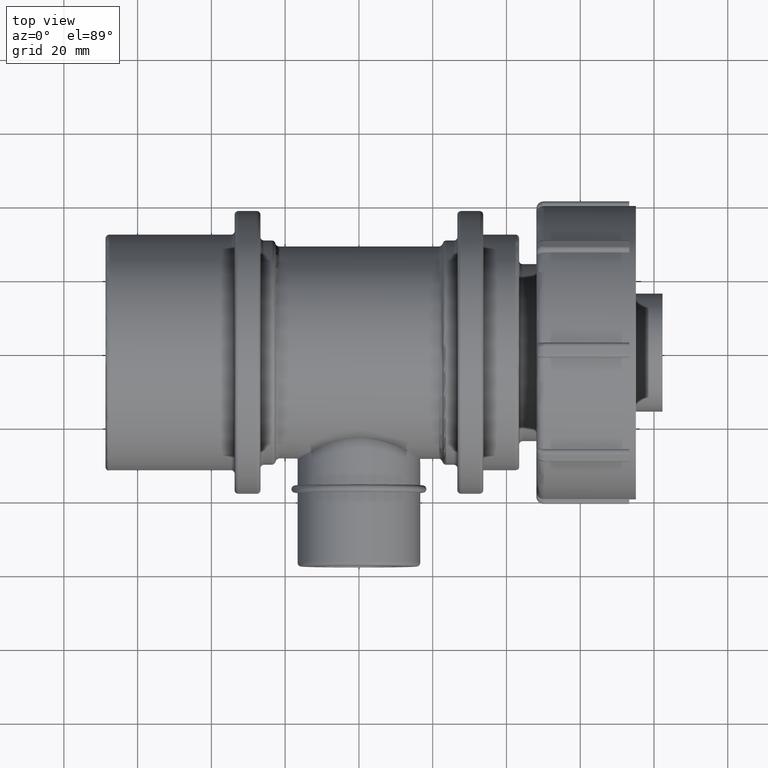
[diagram: clean part render]
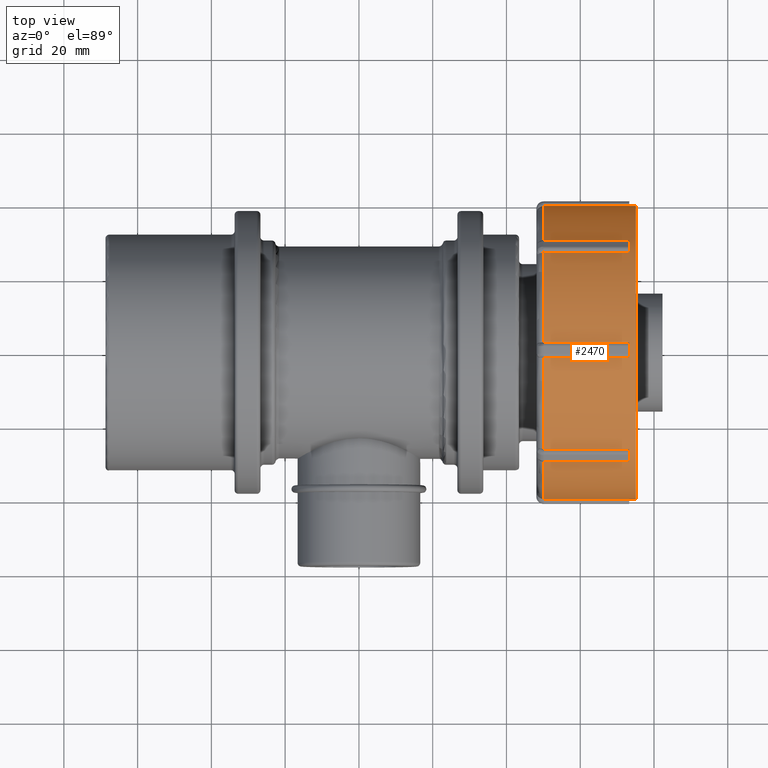
[diagram: same view with one face highlighted and labeled with its STEP entity id]
A machine part, top view. The second image highlights one B-rep face of the part: STEP entity #2470.
In plain terms, the highlighted cylindrical surface (bore or boss wall) has radius 39.77 mm, axis along (1, 0, 0).
Its self-contained STEP definition (entity closure, byte-faithful):
#21=LINE('',#3823,#125);
#53=LINE('',#4011,#157);
#62=LINE('',#4133,#166);
#71=LINE('',#4257,#175);
#80=LINE('',#4381,#184);
#89=LINE('',#4505,#193);
#98=LINE('',#4627,#202);
#104=LINE('',#4704,#208);
#105=LINE('',#4713,#209);
#106=LINE('',#4722,#210);
#107=LINE('',#4731,#211);
#108=LINE('',#4740,#212);
#109=LINE('',#4749,#213);
#110=LINE('',#4764,#214);
#111=LINE('',#4771,#215);
#112=LINE('',#4775,#216);
#125=VECTOR('',#2986,23.2);
#157=VECTOR('',#3082,23.2);
#166=VECTOR('',#3135,23.2);
#175=VECTOR('',#3188,23.2);
#184=VECTOR('',#3241,23.2);
#193=VECTOR('',#3294,23.2);
#202=VECTOR('',#3347,23.2);
#208=VECTOR('',#3381,23.2);
#209=VECTOR('',#3384,23.2);
#210=VECTOR('',#3387,23.2);
#211=VECTOR('',#3390,23.2);
#212=VECTOR('',#3393,23.2);
#213=VECTOR('',#3396,23.2);
#214=VECTOR('',#3411,23.2);
#215=VECTOR('',#3418,23.2);
#216=VECTOR('',#3421,23.2);
#344=CIRCLE('',#2590,39.77);
#368=CIRCLE('',#2622,39.77);
#383=CIRCLE('',#2644,39.77);
#398=CIRCLE('',#2666,39.77);
#413=CIRCLE('',#2688,39.77);
#428=CIRCLE('',#2710,39.77);
#443=CIRCLE('',#2732,39.77);
#450=CIRCLE('',#2757,39.77);
#451=CIRCLE('',#2758,39.77);
#452=CIRCLE('',#2759,39.77);
#453=CIRCLE('',#2760,39.77);
#454=CIRCLE('',#2761,39.77);
#455=CIRCLE('',#2762,39.77);
#456=CIRCLE('',#2763,39.77);
#457=CIRCLE('',#2764,39.77);
#458=CIRCLE('',#2765,39.77);
#459=CIRCLE('',#2766,39.77);
#550=FACE_BOUND('',#898,.T.);
#698=FACE_OUTER_BOUND('',#897,.T.);
#897=EDGE_LOOP('',(#2083));
#898=EDGE_LOOP('',(#2084,#2085,#2086,#2087,#2088,#2089,#2090,#2091,#2092,
#2093,#2094,#2095,#2096,#2097,#2098,#2099,#2100,#2101,#2102,#2103,#2104,
#2105,#2106,#2107,#2108,#2109,#2110,#2111,#2112,#2113,#2114,#2115));
#1063=VERTEX_POINT('',#3820);
#1064=VERTEX_POINT('',#3822);
#1067=VERTEX_POINT('',#3835);
#1111=VERTEX_POINT('',#4008);
#1112=VERTEX_POINT('',#4010);
#1115=VERTEX_POINT('',#4023);
#1128=VERTEX_POINT('',#4130);
#1129=VERTEX_POINT('',#4132);
#1132=VERTEX_POINT('',#4145);
#1145=VERTEX_POINT('',#4254);
#1146=VERTEX_POINT('',#4256);
#1149=VERTEX_POINT('',#4269);
#1162=VERTEX_POINT('',#4378);
#1163=VERTEX_POINT('',#4380);
#1166=VERTEX_POINT('',#4393);
#1179=VERTEX_POINT('',#4502);
#1180=VERTEX_POINT('',#4504);
#1183=VERTEX_POINT('',#4517);
#1196=VERTEX_POINT('',#4624);
#1197=VERTEX_POINT('',#4626);
#1200=VERTEX_POINT('',#4639);
#1206=VERTEX_POINT('',#4697);
#1207=VERTEX_POINT('',#4706);
#1208=VERTEX_POINT('',#4715);
#1209=VERTEX_POINT('',#4724);
#1210=VERTEX_POINT('',#4733);
#1211=VERTEX_POINT('',#4742);
#1212=VERTEX_POINT('',#4757);
#1213=VERTEX_POINT('',#4766);
#1214=VERTEX_POINT('',#4768);
#1215=VERTEX_POINT('',#4770);
#1216=VERTEX_POINT('',#4772);
#1217=VERTEX_POINT('',#4774);
#1299=EDGE_CURVE('',#1064,#1063,#21,.T.);
#1304=EDGE_CURVE('',#1063,#1067,#344,.T.);
#1360=EDGE_CURVE('',#1112,#1111,#53,.T.);
#1365=EDGE_CURVE('',#1111,#1115,#368,.T.);
#1389=EDGE_CURVE('',#1129,#1128,#62,.T.);
#1394=EDGE_CURVE('',#1128,#1132,#383,.T.);
#1418=EDGE_CURVE('',#1146,#1145,#71,.T.);
#1423=EDGE_CURVE('',#1145,#1149,#398,.T.);
#1447=EDGE_CURVE('',#1163,#1162,#80,.T.);
#1452=EDGE_CURVE('',#1162,#1166,#413,.T.);
#1476=EDGE_CURVE('',#1180,#1179,#89,.T.);
#1481=EDGE_CURVE('',#1179,#1183,#428,.T.);
#1505=EDGE_CURVE('',#1197,#1196,#98,.T.);
#1510=EDGE_CURVE('',#1196,#1200,#443,.T.);
#1523=EDGE_CURVE('',#1067,#1206,#104,.T.);
#1525=EDGE_CURVE('',#1115,#1207,#105,.T.);
#1527=EDGE_CURVE('',#1132,#1208,#106,.T.);
#1529=EDGE_CURVE('',#1149,#1209,#107,.T.);
#1531=EDGE_CURVE('',#1166,#1210,#108,.T.);
#1533=EDGE_CURVE('',#1183,#1211,#109,.T.);
#1535=EDGE_CURVE('',#1200,#1212,#110,.T.);
#1536=EDGE_CURVE('',#1213,#1213,#450,.T.);
#1537=EDGE_CURVE('',#1214,#1206,#451,.T.);
#1538=EDGE_CURVE('',#1214,#1215,#111,.T.);
#1539=EDGE_CURVE('',#1215,#1216,#452,.T.);
#1540=EDGE_CURVE('',#1216,#1217,#112,.T.);
#1541=EDGE_CURVE('',#1197,#1217,#453,.T.);
#1542=EDGE_CURVE('',#1180,#1212,#454,.T.);
#1543=EDGE_CURVE('',#1163,#1211,#455,.T.);
#1544=EDGE_CURVE('',#1146,#1210,#456,.T.);
#1545=EDGE_CURVE('',#1129,#1209,#457,.T.);
#1546=EDGE_CURVE('',#1112,#1208,#458,.T.);
#1547=EDGE_CURVE('',#1064,#1207,#459,.T.);
#2083=ORIENTED_EDGE('',*,*,#1536,.F.);
#2084=ORIENTED_EDGE('',*,*,#1299,.T.);
#2085=ORIENTED_EDGE('',*,*,#1304,.T.);
#2086=ORIENTED_EDGE('',*,*,#1523,.T.);
#2087=ORIENTED_EDGE('',*,*,#1537,.F.);
#2088=ORIENTED_EDGE('',*,*,#1538,.T.);
#2089=ORIENTED_EDGE('',*,*,#1539,.T.);
#2090=ORIENTED_EDGE('',*,*,#1540,.T.);
#2091=ORIENTED_EDGE('',*,*,#1541,.F.);
#2092=ORIENTED_EDGE('',*,*,#1505,.T.);
#2093=ORIENTED_EDGE('',*,*,#1510,.T.);
#2094=ORIENTED_EDGE('',*,*,#1535,.T.);
#2095=ORIENTED_EDGE('',*,*,#1542,.F.);
#2096=ORIENTED_EDGE('',*,*,#1476,.T.);
#2097=ORIENTED_EDGE('',*,*,#1481,.T.);
#2098=ORIENTED_EDGE('',*,*,#1533,.T.);
#2099=ORIENTED_EDGE('',*,*,#1543,.F.);
#2100=ORIENTED_EDGE('',*,*,#1447,.T.);
#2101=ORIENTED_EDGE('',*,*,#1452,.T.);
#2102=ORIENTED_EDGE('',*,*,#1531,.T.);
#2103=ORIENTED_EDGE('',*,*,#1544,.F.);
#2104=ORIENTED_EDGE('',*,*,#1418,.T.);
#2105=ORIENTED_EDGE('',*,*,#1423,.T.);
#2106=ORIENTED_EDGE('',*,*,#1529,.T.);
#2107=ORIENTED_EDGE('',*,*,#1545,.F.);
#2108=ORIENTED_EDGE('',*,*,#1389,.T.);
#2109=ORIENTED_EDGE('',*,*,#1394,.T.);
#2110=ORIENTED_EDGE('',*,*,#1527,.T.);
#2111=ORIENTED_EDGE('',*,*,#1546,.F.);
#2112=ORIENTED_EDGE('',*,*,#1360,.T.);
#2113=ORIENTED_EDGE('',*,*,#1365,.T.);
#2114=ORIENTED_EDGE('',*,*,#1525,.T.);
#2115=ORIENTED_EDGE('',*,*,#1547,.F.);
#2331=CYLINDRICAL_SURFACE('',#2756,39.77);
#2470=ADVANCED_FACE('',(#698,#550),#2331,.T.);
#2590=AXIS2_PLACEMENT_3D('',#3837,#2993,#2994);
#2622=AXIS2_PLACEMENT_3D('',#4025,#3089,#3090);
#2644=AXIS2_PLACEMENT_3D('',#4147,#3142,#3143);
#2666=AXIS2_PLACEMENT_3D('',#4271,#3195,#3196);
#2688=AXIS2_PLACEMENT_3D('',#4395,#3248,#3249);
#2710=AXIS2_PLACEMENT_3D('',#4519,#3301,#3302);
#2732=AXIS2_PLACEMENT_3D('',#4641,#3354,#3355);
#2756=AXIS2_PLACEMENT_3D('',#4765,#3412,#3413);
#2757=AXIS2_PLACEMENT_3D('',#4767,#3414,#3415);
#2758=AXIS2_PLACEMENT_3D('',#4769,#3416,#3417);
#2759=AXIS2_PLACEMENT_3D('',#4773,#3419,#3420);
#2760=AXIS2_PLACEMENT_3D('',#4776,#3422,#3423);
#2761=AXIS2_PLACEMENT_3D('',#4777,#3424,#3425);
#2762=AXIS2_PLACEMENT_3D('',#4778,#3426,#3427);
#2763=AXIS2_PLACEMENT_3D('',#4779,#3428,#3429);
#2764=AXIS2_PLACEMENT_3D('',#4780,#3430,#3431);
#2765=AXIS2_PLACEMENT_3D('',#4781,#3432,#3433);
#2766=AXIS2_PLACEMENT_3D('',#4782,#3434,#3435);
#2986=DIRECTION('',(1.,0.,0.));
#2993=DIRECTION('center_axis',(1.,0.,0.));
#2994=DIRECTION('ref_axis',(0.,1.,0.));
#3082=DIRECTION('',(1.,0.,0.));
#3089=DIRECTION('center_axis',(1.,0.,0.));
#3090=DIRECTION('ref_axis',(0.,1.,0.));
#3135=DIRECTION('',(1.,0.,0.));
#3142=DIRECTION('center_axis',(1.,0.,0.));
#3143=DIRECTION('ref_axis',(0.,1.,0.));
#3188=DIRECTION('',(1.,0.,0.));
#3195=DIRECTION('center_axis',(1.,0.,0.));
#3196=DIRECTION('ref_axis',(0.,1.,0.));
#3241=DIRECTION('',(1.,0.,0.));
#3248=DIRECTION('center_axis',(1.,0.,0.));
#3249=DIRECTION('ref_axis',(0.,1.,0.));
#3294=DIRECTION('',(1.,0.,0.));
#3301=DIRECTION('center_axis',(1.,0.,0.));
#3302=DIRECTION('ref_axis',(0.,1.,0.));
#3347=DIRECTION('',(1.,0.,0.));
#3354=DIRECTION('center_axis',(1.,0.,0.));
#3355=DIRECTION('ref_axis',(0.,1.,0.));
#3381=DIRECTION('',(-1.,0.,0.));
#3384=DIRECTION('',(-1.,0.,0.));
#3387=DIRECTION('',(-1.,0.,0.));
#3390=DIRECTION('',(-1.,0.,0.));
#3393=DIRECTION('',(-1.,0.,0.));
#3396=DIRECTION('',(-1.,0.,0.));
#3411=DIRECTION('',(-1.,0.,0.));
#3412=DIRECTION('center_axis',(1.,0.,0.));
#3413=DIRECTION('ref_axis',(0.,1.,0.));
#3414=DIRECTION('center_axis',(1.,0.,0.));
#3415=DIRECTION('ref_axis',(0.,0.,-1.));
#3416=DIRECTION('center_axis',(-1.,0.,0.));
#3417=DIRECTION('ref_axis',(0.,-1.,1.83697019872103E-16));
#3418=DIRECTION('',(1.,0.,0.));
#3419=DIRECTION('center_axis',(1.,0.,0.));
#3420=DIRECTION('ref_axis',(0.,1.,0.));
#3421=DIRECTION('',(-1.,0.,0.));
#3422=DIRECTION('center_axis',(-1.,0.,0.));
#3423=DIRECTION('ref_axis',(0.,-1.,1.83697019872103E-16));
#3424=DIRECTION('center_axis',(-1.,0.,0.));
#3425=DIRECTION('ref_axis',(0.,-1.,1.83697019872103E-16));
#3426=DIRECTION('center_axis',(-1.,0.,0.));
#3427=DIRECTION('ref_axis',(0.,-1.,1.83697019872103E-16));
#3428=DIRECTION('center_axis',(-1.,0.,0.));
#3429=DIRECTION('ref_axis',(0.,-1.,1.83697019872103E-16));
#3430=DIRECTION('center_axis',(-1.,0.,0.));
#3431=DIRECTION('ref_axis',(0.,-1.,1.83697019872103E-16));
#3432=DIRECTION('center_axis',(-1.,0.,0.));
#3433=DIRECTION('ref_axis',(0.,-1.,1.83697019872103E-16));
#3434=DIRECTION('center_axis',(-1.,0.,0.));
#3435=DIRECTION('ref_axis',(0.,-1.,1.83697019872103E-16));
#3820=CARTESIAN_POINT('',(73.3,26.6346829134193,-29.5338207162841));
#3822=CARTESIAN_POINT('',(50.1,26.6346829134193,-29.5338207162841));
#3823=CARTESIAN_POINT('',(61.6,26.6346829134193,-29.5338207162841));
#3835=CARTESIAN_POINT('',(73.3,29.5338207162841,-26.6346829134193));
#3837=CARTESIAN_POINT('Origin',(73.3,0.,0.));
#4008=CARTESIAN_POINT('',(73.3,-2.05000000000001,-39.7171298056645));
#4010=CARTESIAN_POINT('',(50.1,-2.05000000000001,-39.7171298056645));
#4011=CARTESIAN_POINT('',(61.6,-2.05000000000001,-39.7171298056645));
#4023=CARTESIAN_POINT('',(73.3,2.04999999999999,-39.7171298056645));
#4025=CARTESIAN_POINT('Origin',(73.3,0.,0.));
#4130=CARTESIAN_POINT('',(73.3,-29.5338207162841,-26.6346829134193));
#4132=CARTESIAN_POINT('',(50.1,-29.5338207162841,-26.6346829134193));
#4133=CARTESIAN_POINT('',(61.6,-29.5338207162841,-26.6346829134193));
#4145=CARTESIAN_POINT('',(73.3,-26.6346829134193,-29.5338207162841));
#4147=CARTESIAN_POINT('Origin',(73.3,0.,0.));
#4254=CARTESIAN_POINT('',(73.3,-39.7171298056645,2.05000000000001));
#4256=CARTESIAN_POINT('',(50.1,-39.7171298056645,2.05000000000001));
#4257=CARTESIAN_POINT('',(61.6,-39.7171298056645,2.05000000000001));
#4269=CARTESIAN_POINT('',(73.3,-39.7171298056645,-2.04999999999999));
#4271=CARTESIAN_POINT('Origin',(73.3,0.,0.));
#4378=CARTESIAN_POINT('',(73.3,-26.6346829134193,29.5338207162841));
#4380=CARTESIAN_POINT('',(50.1,-26.6346829134193,29.5338207162841));
#4381=CARTESIAN_POINT('',(61.6,-26.6346829134193,29.5338207162841));
#4393=CARTESIAN_POINT('',(73.3,-29.5338207162841,26.6346829134193));
#4395=CARTESIAN_POINT('Origin',(73.3,0.,0.));
#4502=CARTESIAN_POINT('',(73.3,2.05,39.7171298056645));
#4504=CARTESIAN_POINT('',(50.1,2.05,39.7171298056645));
#4505=CARTESIAN_POINT('',(61.6,2.05,39.7171298056645));
#4517=CARTESIAN_POINT('',(73.3,-2.05,39.7171298056645));
#4519=CARTESIAN_POINT('Origin',(73.3,0.,0.));
#4624=CARTESIAN_POINT('',(73.3,29.5338207162841,26.6346829134193));
#4626=CARTESIAN_POINT('',(50.1,29.5338207162841,26.6346829134193));
#4627=CARTESIAN_POINT('',(61.6,29.5338207162841,26.6346829134193));
#4639=CARTESIAN_POINT('',(73.3,26.6346829134193,29.5338207162841));
#4641=CARTESIAN_POINT('Origin',(73.3,0.,0.));
#4697=CARTESIAN_POINT('',(50.1,29.5338207162841,-26.6346829134193));
#4704=CARTESIAN_POINT('',(61.6,29.5338207162841,-26.6346829134193));
#4706=CARTESIAN_POINT('',(50.1,2.04999999999999,-39.7171298056645));
#4713=CARTESIAN_POINT('',(61.6,2.04999999999999,-39.7171298056645));
#4715=CARTESIAN_POINT('',(50.1,-26.6346829134193,-29.5338207162841));
#4722=CARTESIAN_POINT('',(61.6,-26.6346829134193,-29.5338207162841));
#4724=CARTESIAN_POINT('',(50.1,-39.7171298056645,-2.04999999999999));
#4731=CARTESIAN_POINT('',(61.6,-39.7171298056645,-2.04999999999999));
#4733=CARTESIAN_POINT('',(50.1,-29.5338207162841,26.6346829134193));
#4740=CARTESIAN_POINT('',(61.6,-29.5338207162841,26.6346829134193));
#4742=CARTESIAN_POINT('',(50.1,-2.05,39.7171298056645));
#4749=CARTESIAN_POINT('',(61.6,-2.05,39.7171298056645));
#4757=CARTESIAN_POINT('',(50.1,26.6346829134193,29.5338207162841));
#4764=CARTESIAN_POINT('',(61.6,26.6346829134193,29.5338207162841));
#4765=CARTESIAN_POINT('Origin',(61.6,0.,0.));
#4766=CARTESIAN_POINT('',(75.1,39.77,0.));
#4767=CARTESIAN_POINT('Origin',(75.1,0.,0.));
#4768=CARTESIAN_POINT('',(50.1,39.7171298056645,-2.05));
#4769=CARTESIAN_POINT('Origin',(50.1,0.,0.));
#4770=CARTESIAN_POINT('',(73.3,39.7171298056645,-2.05));
#4771=CARTESIAN_POINT('',(61.6,39.7171298056645,-2.05));
#4772=CARTESIAN_POINT('',(73.3,39.7171298056645,2.05));
#4773=CARTESIAN_POINT('Origin',(73.3,0.,0.));
#4774=CARTESIAN_POINT('',(50.1,39.7171298056645,2.05));
#4775=CARTESIAN_POINT('',(61.6,39.7171298056645,2.05));
#4776=CARTESIAN_POINT('Origin',(50.1,0.,0.));
#4777=CARTESIAN_POINT('Origin',(50.1,0.,0.));
#4778=CARTESIAN_POINT('Origin',(50.1,0.,0.));
#4779=CARTESIAN_POINT('Origin',(50.1,0.,0.));
#4780=CARTESIAN_POINT('Origin',(50.1,0.,0.));
#4781=CARTESIAN_POINT('Origin',(50.1,0.,0.));
#4782=CARTESIAN_POINT('Origin',(50.1,0.,0.));